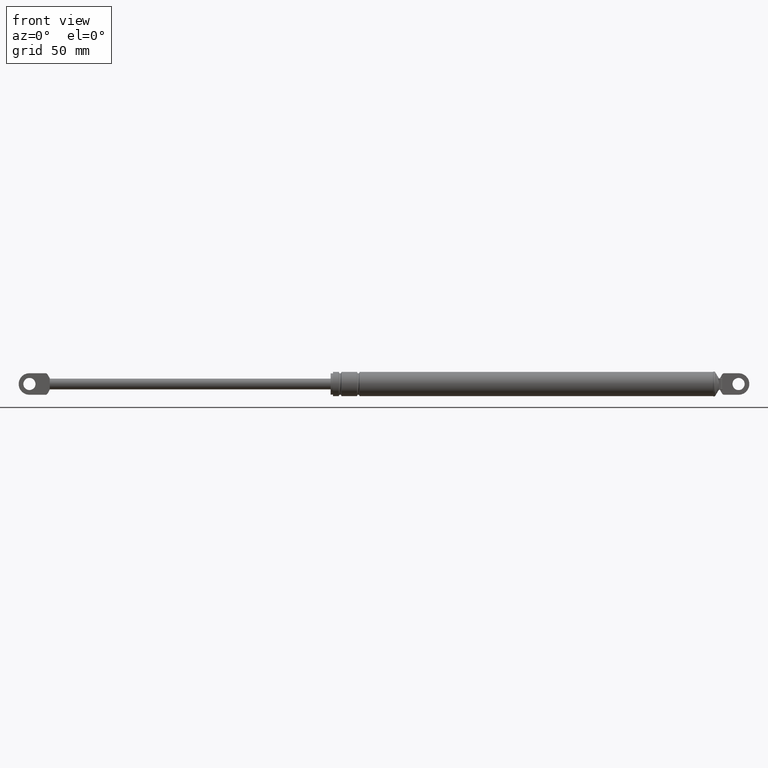
[diagram: clean part render]
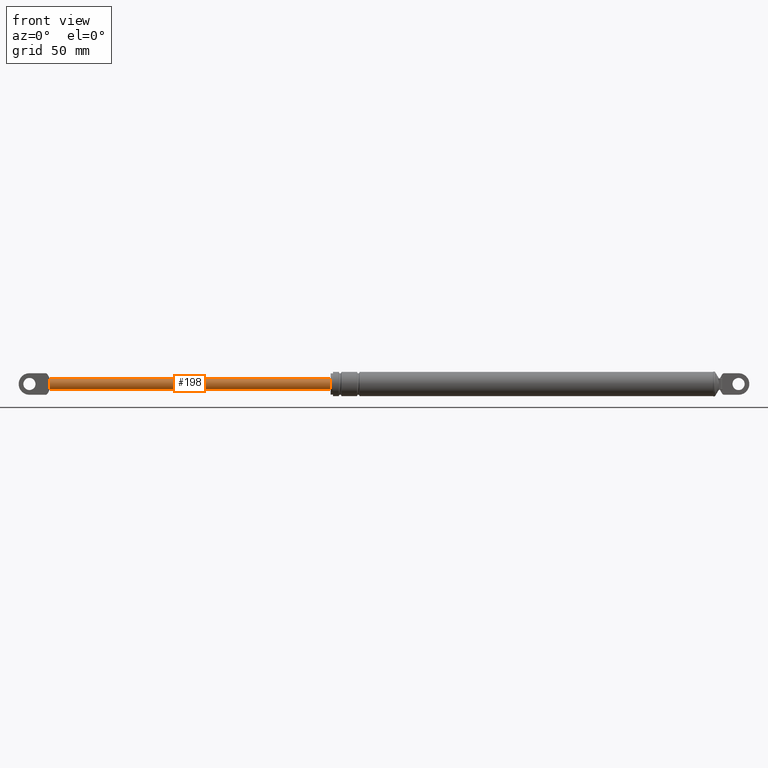
[diagram: same view with one face highlighted and labeled with its STEP entity id]
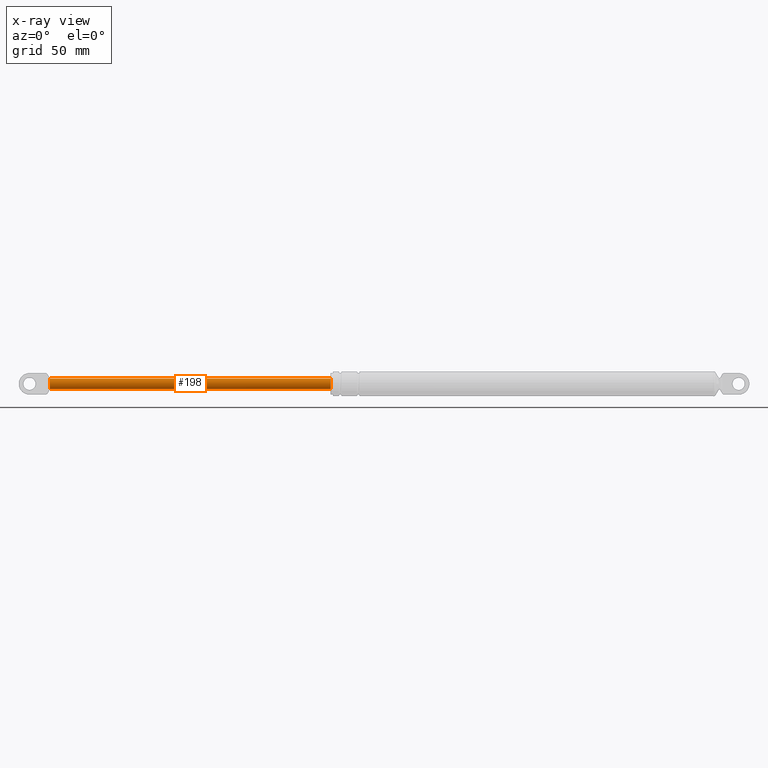
[diagram: x-ray of the same camera — body ghosted, the highlighted face saturated]
A machine part, front view. The second image highlights one B-rep face of the part: STEP entity #198.
The next image is the same camera in x-ray: the body ghosted, the highlighted face saturated — about 0% of this face is hidden behind the body in this view.
In plain terms, the highlighted cylindrical surface (edge-blend (fillet) strip) has radius 4 mm, axis along (1, 0, 0).
Its self-contained STEP definition (entity closure, byte-faithful):
#198=ADVANCED_FACE('',(#1071),#1070,.T.);
#1070=CYLINDRICAL_SURFACE('',#1840,4.00000000000E+000);
#1071=FACE_OUTER_BOUND('',#1841,.T.);
#1837=CARTESIAN_POINT('',(0.00000000000E+000,0.00000000000E+000,2.06267818784E+002));
#1838=DIRECTION('',(1.00000000000E+000,-0.00000000000E+000,-0.00000000000E+000));
#1839=DIRECTION('',(-0.00000000000E+000,-0.00000000000E+000,-1.00000000000E+000));
#1840=AXIS2_PLACEMENT_3D('',#1837,#1838,#1839);
#1841=EDGE_LOOP('',(#2266,#2267,#2268,#2269,#2270,#2271));
#2266=ORIENTED_EDGE('',*,*,#2464,.F.);
#2267=ORIENTED_EDGE('',*,*,#2451,.F.);
#2268=ORIENTED_EDGE('',*,*,#2456,.F.);
#2269=ORIENTED_EDGE('',*,*,#2490,.T.);
#2270=ORIENTED_EDGE('',*,*,#2488,.T.);
#2271=ORIENTED_EDGE('',*,*,#2491,.F.);
#2451=EDGE_CURVE('',#3620,#3621,#3628,.T.);
#2456=EDGE_CURVE('',#3655,#3620,#3662,.T.);
#2464=EDGE_CURVE('',#3621,#3716,#3717,.T.);
#2488=EDGE_CURVE('',#3874,#3875,#3876,.T.);
#2490=EDGE_CURVE('',#3655,#3874,#3888,.T.);
#2491=EDGE_CURVE('',#3716,#3875,#3894,.T.);
#3620=VERTEX_POINT('',#4660);
#3621=VERTEX_POINT('',#4661);
#3628=CIRCLE('',#4668,4.00000000000E+000);
#3655=VERTEX_POINT('',#4682);
#3662=CIRCLE('',#4690,4.00000000000E+000);
#3716=VERTEX_POINT('',#4720);
#3717=CIRCLE('',#4724,4.00000000000E+000);
#3874=VERTEX_POINT('',#4816);
#3875=VERTEX_POINT('',#4817);
#3876=CIRCLE('',#4821,4.00000000000E+000);
#3888=(BOUNDED_CURVE() B_SPLINE_CURVE(1,(#4826,#4827),.UNSPECIFIED.,.F.,.F.) B_SPLINE_CURVE_WITH_KNOTS((2,2),(4.38596492634E-002,9.56140350804E-001),.UNSPECIFIED.) CURVE() GEOMETRIC_REPRESENTATION_ITEM() RATIONAL_B_SPLINE_CURVE((1.00000000000E+000,1.00000000000E+000)) REPRESENTATION_ITEM('') );
#3894=(BOUNDED_CURVE() B_SPLINE_CURVE(1,(#4828,#4829),.UNSPECIFIED.,.F.,.F.) B_SPLINE_CURVE_WITH_KNOTS((2,2),(4.38596491228E-002,9.56140350877E-001),.UNSPECIFIED.) CURVE() GEOMETRIC_REPRESENTATION_ITEM() RATIONAL_B_SPLINE_CURVE((7.50000000000E-001,7.50000000000E-001)) REPRESENTATION_ITEM('') );
#4660=CARTESIAN_POINT('',(-5.61330699119E+001,-1.60000000000E+000,2.02601758228E+002));
#4661=CARTESIAN_POINT('',(-5.61330699119E+001,-1.60000000000E+000,2.09933879340E+002));
#4665=CARTESIAN_POINT('',(-5.61330699119E+001,0.00000000000E+000,2.06267818784E+002));
#4666=DIRECTION('',(-1.00000000000E+000,0.00000000000E+000,0.00000000000E+000));
#4667=DIRECTION('',(-0.00000000000E+000,-0.00000000000E+000,-1.00000000000E+000));
#4668=AXIS2_PLACEMENT_3D('',#4665,#4666,#4667);
#4682=CARTESIAN_POINT('',(-5.61330699119E+001,2.07386748338E-014,2.02267818784E+002));
#4687=CARTESIAN_POINT('',(-5.61330699119E+001,0.00000000000E+000,2.06267818784E+002));
#4688=DIRECTION('',(-1.00000000000E+000,0.00000000000E+000,0.00000000000E+000));
#4689=DIRECTION('',(-0.00000000000E+000,4.00000000000E-001,-9.16515138991E-001));
#4690=AXIS2_PLACEMENT_3D('',#4687,#4688,#4689);
#4720=CARTESIAN_POINT('',(-5.61330699119E+001,5.49543663975E-007,2.10267818784E+002));
#4721=CARTESIAN_POINT('',(-5.61330699119E+001,0.00000000000E+000,2.06267818784E+002));
#4722=DIRECTION('',(-1.00000000000E+000,0.00000000000E+000,0.00000000000E+000));
#4723=DIRECTION('',(-0.00000000000E+000,-0.00000000000E+000,-1.00000000000E+000));
#4724=AXIS2_PLACEMENT_3D('',#4721,#4722,#4723);
#4816=CARTESIAN_POINT('',(1.51866930088E+002,4.44089209850E-016,2.02267818784E+002));
#4817=CARTESIAN_POINT('',(1.51866930088E+002,0.00000000000E+000,2.10267818784E+002));
#4818=CARTESIAN_POINT('',(1.51866930088E+002,0.00000000000E+000,2.06267818784E+002));
#4819=DIRECTION('',(-1.00000000000E+000,0.00000000000E+000,0.00000000000E+000));
#4820=DIRECTION('',(0.00000000000E+000,-1.22460635382E-016,1.00000000000E+000));
#4821=AXIS2_PLACEMENT_3D('',#4818,#4819,#4820);
#4826=CARTESIAN_POINT('',(-5.61330698799E+001,0.00000000000E+000,2.02267818784E+002));
#4827=CARTESIAN_POINT('',(1.51866930071E+002,0.00000000000E+000,2.02267818784E+002));
#4828=CARTESIAN_POINT('',(-5.61330699119E+001,-1.48029736617E-016,2.10267818784E+002));
#4829=CARTESIAN_POINT('',(1.51866930088E+002,-1.48029736617E-016,2.10267818784E+002));